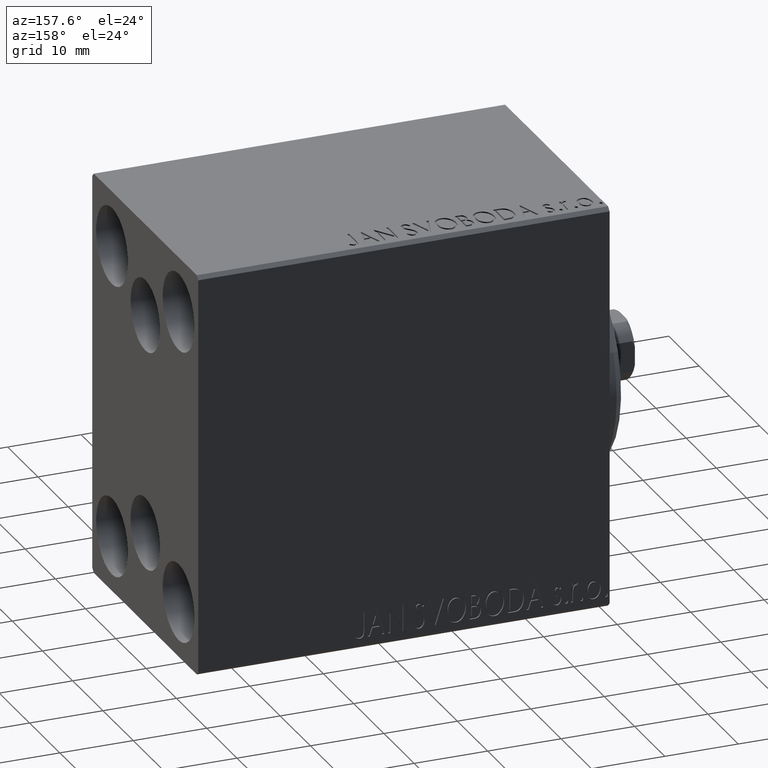
[diagram: clean part render]
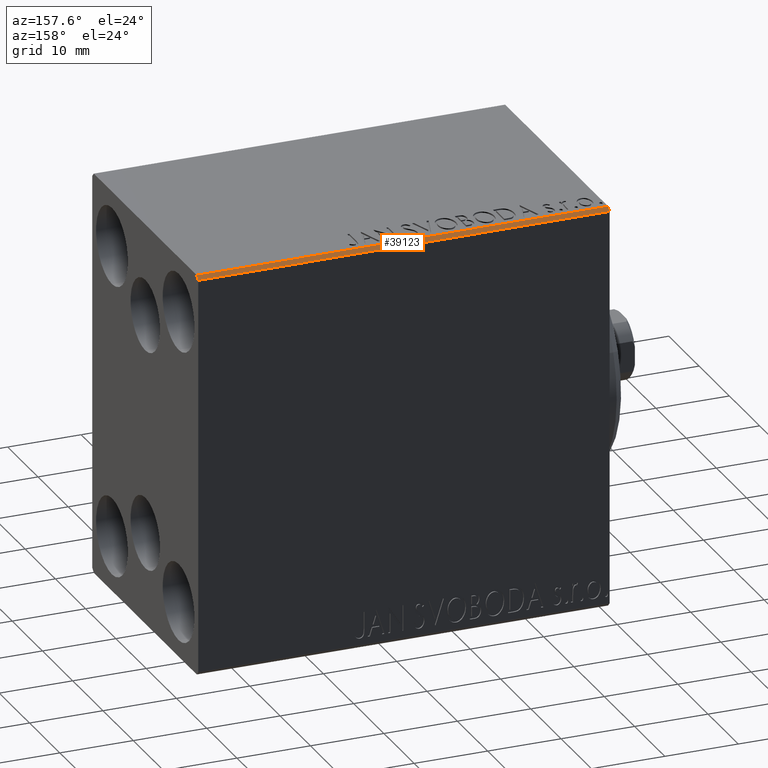
[diagram: same view with one face highlighted and labeled with its STEP entity id]
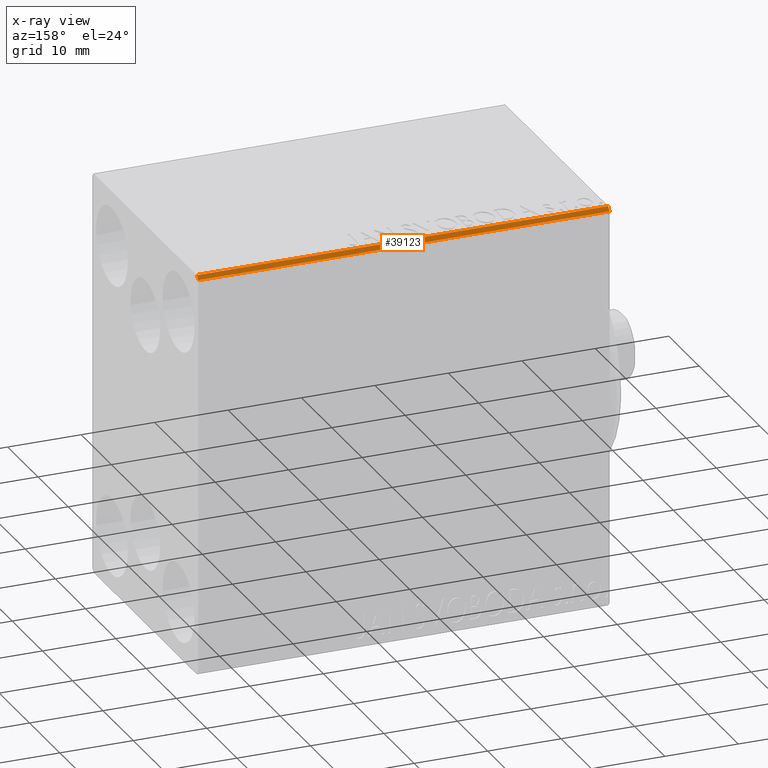
[diagram: x-ray of the same camera — body ghosted, the highlighted face saturated]
A machine part, auxiliary view. The second image highlights one B-rep face of the part: STEP entity #39123.
The next image is the same camera in x-ray: the body ghosted, the highlighted face saturated — about 0% of this face is hidden behind the body in this view.
In plain terms, the highlighted planar face has unit normal (-0, -0.7071, -0.7071).
Its self-contained STEP definition (entity closure, byte-faithful):
#2323 = VERTEX_POINT ( 'NONE', #15943 ) ;
#2493 = VERTEX_POINT ( 'NONE', #5821 ) ;
#4307 = LINE ( 'NONE', #37853, #37496 ) ;
#4820 = DIRECTION ( 'NONE',  ( -1.000000000000000000, 0.000000000000000000, 0.000000000000000000 ) ) ;
#5781 = EDGE_LOOP ( 'NONE', ( #20973, #18778, #35717, #13797 ) ) ;
#5821 = CARTESIAN_POINT ( 'NONE',  ( 56.00000000000000000, 16.99999999999999289, 27.50000000000000355 ) ) ;
#7739 = DIRECTION ( 'NONE',  ( -0.000000000000000000, -0.7071067811865475727, -0.7071067811865475727 ) ) ;
#8460 = VERTEX_POINT ( 'NONE', #21167 ) ;
#8756 = LINE ( 'NONE', #22297, #28341 ) ;
#9600 = EDGE_CURVE ( 'NONE', #2323, #8460, #28845, .T. ) ;
#13797 = ORIENTED_EDGE ( 'NONE', *, *, #39524, .F. ) ;
#14721 = LINE ( 'NONE', #38681, #16315 ) ;
#15194 = CARTESIAN_POINT ( 'NONE',  ( 56.00000000000000000, 17.50000000000000000, 26.99999999999999645 ) ) ;
#15536 = CARTESIAN_POINT ( 'NONE',  ( 0.000000000000000000, 16.99999999999999289, 27.50000000000000355 ) ) ;
#15943 = CARTESIAN_POINT ( 'NONE',  ( 0.000000000000000000, 16.99999999999999289, 27.50000000000000355 ) ) ;
#16315 = VECTOR ( 'NONE', #38470, 1000.000000000000114 ) ;
#18778 = ORIENTED_EDGE ( 'NONE', *, *, #35219, .F. ) ;
#20973 = ORIENTED_EDGE ( 'NONE', *, *, #39774, .F. ) ;
#21167 = CARTESIAN_POINT ( 'NONE',  ( 0.000000000000000000, 17.50000000000000000, 26.99999999999999645 ) ) ;
#22297 = CARTESIAN_POINT ( 'NONE',  ( 56.00000000000000000, 16.99999999999999289, 27.50000000000000355 ) ) ;
#22957 = DIRECTION ( 'NONE',  ( -1.000000000000000000, 0.000000000000000000, 0.000000000000000000 ) ) ;
#23547 = VECTOR ( 'NONE', #29064, 1000.000000000000114 ) ;
#25038 = FACE_OUTER_BOUND ( 'NONE', #5781, .T. ) ;
#25454 = VERTEX_POINT ( 'NONE', #15194 ) ;
#28272 = DIRECTION ( 'NONE',  ( 1.000000000000000000, 0.000000000000000000, 0.000000000000000000 ) ) ;
#28341 = VECTOR ( 'NONE', #22957, 1000.000000000000000 ) ;
#28845 = LINE ( 'NONE', #15536, #23547 ) ;
#29064 = DIRECTION ( 'NONE',  ( -0.000000000000000000, 0.7071067811865474617, -0.7071067811865474617 ) ) ;
#31476 = CARTESIAN_POINT ( 'NONE',  ( 56.00000000000000000, 16.99999999999999289, 27.50000000000000355 ) ) ;
#35219 = EDGE_CURVE ( 'NONE', #8460, #25454, #4307, .T. ) ;
#35717 = ORIENTED_EDGE ( 'NONE', *, *, #9600, .F. ) ;
#37496 = VECTOR ( 'NONE', #28272, 1000.000000000000000 ) ;
#37853 = CARTESIAN_POINT ( 'NONE',  ( 56.00000000000000000, 17.50000000000000000, 26.99999999999999645 ) ) ;
#38470 = DIRECTION ( 'NONE',  ( -0.000000000000000000, -0.7071067811865474617, 0.7071067811865474617 ) ) ;
#38573 = PLANE ( 'NONE',  #40354 ) ;
#38681 = CARTESIAN_POINT ( 'NONE',  ( 56.00000000000000000, 22.25000000000000355, 22.25000000000000355 ) ) ;
#39123 = ADVANCED_FACE ( 'NONE', ( #25038 ), #38573, .F. ) ;
#39524 = EDGE_CURVE ( 'NONE', #2493, #2323, #8756, .T. ) ;
#39774 = EDGE_CURVE ( 'NONE', #25454, #2493, #14721, .T. ) ;
#40354 = AXIS2_PLACEMENT_3D ( 'NONE', #31476, #7739, #4820 ) ;